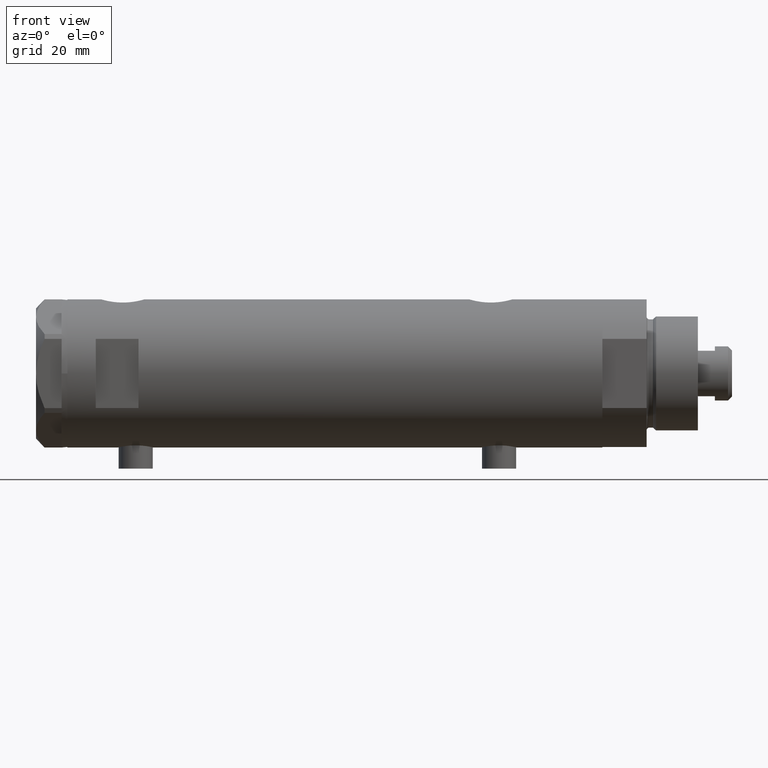
[diagram: clean part render]
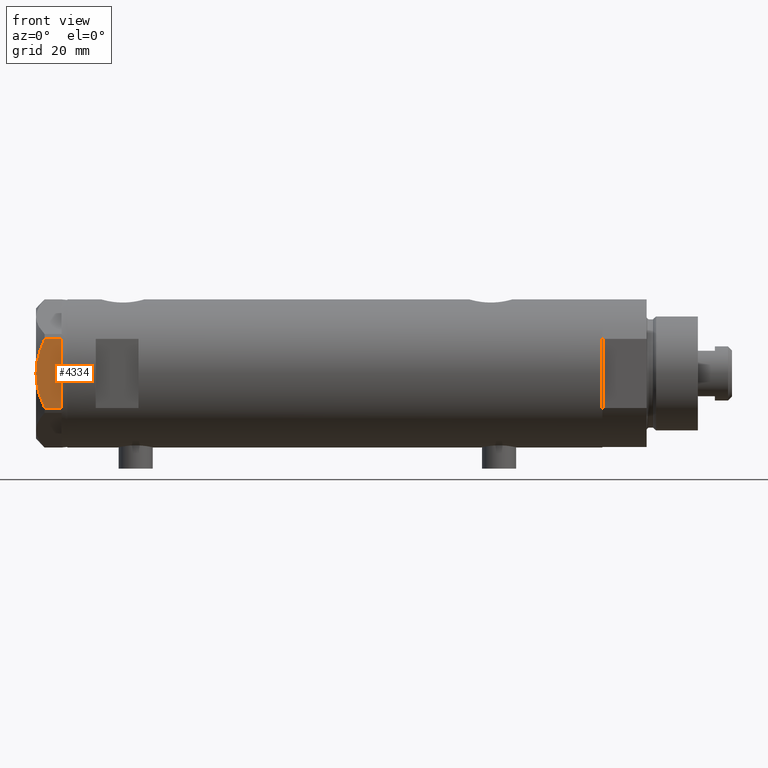
[diagram: same view with one face highlighted and labeled with its STEP entity id]
A machine part, front view. The second image highlights one B-rep face of the part: STEP entity #4334.
In plain terms, the highlighted planar face has unit normal (-0, 1, -0).
Its self-contained STEP definition (entity closure, byte-faithful):
#45 = EDGE_CURVE ( 'NONE', #1657, #672, #2189, .T. ) ;
#151 = CARTESIAN_POINT ( 'NONE',  ( -22.99999999999992184, -7.253003311474388148, 7.903276810347638737 ) ) ;
#190 = CARTESIAN_POINT ( 'NONE',  ( -22.99999999999999645, 13.27905619136132032, 0.000000000000000000 ) ) ;
#294 = ORIENTED_EDGE ( 'NONE', *, *, #3319, .T. ) ;
#357 = CARTESIAN_POINT ( 'NONE',  ( -22.99999999999990763, -12.15905619136147564, 5.983800287807627072 ) ) ;
#386 = CARTESIAN_POINT ( 'NONE',  ( -22.99999999999991118, -11.20155944044816287, 6.421102682632757741 ) ) ;
#447 = DIRECTION ( 'NONE',  ( 1.000000000000000000, 3.527173405730720141E-15, -0.000000000000000000 ) ) ;
#520 = CARTESIAN_POINT ( 'NONE',  ( -22.99999999999995026, -1.063773509315737442, 8.981438083606830602 ) ) ;
#574 = CARTESIAN_POINT ( 'NONE',  ( -22.99999999999999289, 12.15905619136133176, 5.983800287807616414 ) ) ;
#622 = EDGE_CURVE ( 'NONE', #4735, #3419, #2667, .T. ) ;
#672 = VERTEX_POINT ( 'NONE', #3672 ) ;
#679 = CARTESIAN_POINT ( 'NONE',  ( -22.99999999999998224, 8.246028007352361300, 7.571131808646907935 ) ) ;
#733 = CARTESIAN_POINT ( 'NONE',  ( -22.99999999999996803, 7.239756182922199024, 7.892186063422847120 ) ) ;
#743 = VECTOR ( 'NONE', #2736, 1000.000000000000000 ) ;
#761 = CARTESIAN_POINT ( 'NONE',  ( -22.99999999999997513, 8.748091966971378142, 7.396818978284571244 ) ) ;
#838 = CARTESIAN_POINT ( 'NONE',  ( -22.99999999999990763, -12.12435565298232021, 0.000000000000000000 ) ) ;
#937 = DIRECTION ( 'NONE',  ( 3.527173405730720141E-15, -1.000000000000000000, 0.000000000000000000 ) ) ;
#1003 = AXIS2_PLACEMENT_3D ( 'NONE', #1957, #447, #3438 ) ;
#1076 = CARTESIAN_POINT ( 'NONE',  ( -22.99999999999999289, 12.15905619136133176, 9.000000000000000000 ) ) ;
#1079 = EDGE_CURVE ( 'NONE', #1710, #1110, #1870, .T. ) ;
#1110 = VERTEX_POINT ( 'NONE', #357 ) ;
#1116 = CARTESIAN_POINT ( 'NONE',  ( -22.99999999999992895, -5.228918809624124364, 8.433337033849854336 ) ) ;
#1132 = CARTESIAN_POINT ( 'NONE',  ( -22.99999999999998579, 10.23890159976122050, 6.840812428290914404 ) ) ;
#1237 = CARTESIAN_POINT ( 'NONE',  ( -22.99999999999993250, -4.203926054641964782, 8.641681223122507305 ) ) ;
#1285 = CARTESIAN_POINT ( 'NONE',  ( -22.99999999999991829, -9.734726261263297431, 7.028924700095662281 ) ) ;
#1329 = ORIENTED_EDGE ( 'NONE', *, *, #2928, .T. ) ;
#1454 = CARTESIAN_POINT ( 'NONE',  ( -22.99999999999996803, 4.194757081058972936, 8.703000351525203016 ) ) ;
#1485 = DIRECTION ( 'NONE',  ( 0.000000000000000000, 0.000000000000000000, -1.000000000000000000 ) ) ;
#1598 = CARTESIAN_POINT ( 'NONE',  ( -22.99999999999999645, 13.27905619136132032, 0.000000000000000000 ) ) ;
#1657 = VERTEX_POINT ( 'NONE', #574 ) ;
#1710 = VERTEX_POINT ( 'NONE', #3215 ) ;
#1870 = B_SPLINE_CURVE_WITH_KNOTS ( 'NONE', 3,
 ( #2379, #3138, #520, #3507, #4100, #1237, #1116, #151, #2746, #1285, #3740, #386, #4252, #1883 ),
 .UNSPECIFIED., .F., .F.,
 ( 4, 2, 2, 2, 2, 2, 4 ),
 ( 0.04777139595992690307, 0.04934380568070229761, 0.05091621540147769215, 0.05406103484302848122, 0.05720585428457927030, 0.05877826400535466483, 0.06035067372613005937 ),
 .UNSPECIFIED. ) ;
#1883 = CARTESIAN_POINT ( 'NONE',  ( -22.99999999999990763, -12.15905619136147564, 5.983800287807627072 ) ) ;
#1900 = CARTESIAN_POINT ( 'NONE',  ( -22.99999999999999289, 12.15905619136133176, 5.983800287807616414 ) ) ;
#1938 = CARTESIAN_POINT ( 'NONE',  ( -22.99999999999990763, -12.15905619136147386, 0.000000000000000000 ) ) ;
#1957 = CARTESIAN_POINT ( 'NONE',  ( -22.99999999999999645, 13.27905619136132032, 9.000000000000000000 ) ) ;
#2141 = DIRECTION ( 'NONE',  ( 3.527173405730720141E-15, -1.000000000000000000, 0.000000000000000000 ) ) ;
#2189 = LINE ( 'NONE', #1076, #3554 ) ;
#2192 = FACE_OUTER_BOUND ( 'NONE', #4050, .T. ) ;
#2213 = EDGE_CURVE ( 'NONE', #1657, #1710, #3417, .T. ) ;
#2273 = CARTESIAN_POINT ( 'NONE',  ( -22.99999999999998934, 11.20825071633916359, 6.428173306378450746 ) ) ;
#2379 = CARTESIAN_POINT ( 'NONE',  ( -23.00000000000004619, -8.112498833180673323E-14, 9.000000000000000000 ) ) ;
#2667 = LINE ( 'NONE', #1598, #743 ) ;
#2736 = DIRECTION ( 'NONE',  ( 3.527173405730720141E-15, -1.000000000000000000, 0.000000000000000000 ) ) ;
#2746 = CARTESIAN_POINT ( 'NONE',  ( -22.99999999999991829, -8.252113629125268801, 7.581642062680223226 ) ) ;
#2783 = LINE ( 'NONE', #4659, #4524 ) ;
#2828 = ORIENTED_EDGE ( 'NONE', *, *, #1079, .F. ) ;
#2854 = ORIENTED_EDGE ( 'NONE', *, *, #45, .T. ) ;
#2895 = LINE ( 'NONE', #4803, #4858 ) ;
#2928 = EDGE_CURVE ( 'NONE', #672, #4362, #4616, .T. ) ;
#3022 = ORIENTED_EDGE ( 'NONE', *, *, #622, .T. ) ;
#3138 = CARTESIAN_POINT ( 'NONE',  ( -22.99999999999995737, -0.5295934231897764244, 9.000000000000092371 ) ) ;
#3215 = CARTESIAN_POINT ( 'NONE',  ( -23.00000000000004619, -8.112498833180673323E-14, 9.000000000000000000 ) ) ;
#3319 = EDGE_CURVE ( 'NONE', #3419, #1110, #2783, .T. ) ;
#3417 = B_SPLINE_CURVE_WITH_KNOTS ( 'NONE', 3,
 ( #1900, #2273, #1132, #761, #679, #733, #4118, #1454, #4390, #4070 ),
 .UNSPECIFIED., .F., .F.,
 ( 4, 2, 2, 2, 4 ),
 ( 0.03516523594057416324, 0.03831677594541234300, 0.03989254594783143981, 0.04146831595025052969, 0.04777139595992690307 ),
 .UNSPECIFIED. ) ;
#3419 = VERTEX_POINT ( 'NONE', #1938 ) ;
#3438 = DIRECTION ( 'NONE',  ( -3.527173405730720141E-15, 1.000000000000000000, 0.000000000000000000 ) ) ;
#3471 = ORIENTED_EDGE ( 'NONE', *, *, #2213, .F. ) ;
#3507 = CARTESIAN_POINT ( 'NONE',  ( -22.99999999999993960, -2.119709279061923191, 8.908535212173198659 ) ) ;
#3554 = VECTOR ( 'NONE', #1485, 1000.000000000000000 ) ;
#3645 = VECTOR ( 'NONE', #937, 1000.000000000000000 ) ;
#3672 = CARTESIAN_POINT ( 'NONE',  ( -22.99999999999999289, 12.15905619136133176, 0.000000000000000000 ) ) ;
#3675 = PLANE ( 'NONE',  #1003 ) ;
#3740 = CARTESIAN_POINT ( 'NONE',  ( -22.99999999999991118, -10.22738952213794761, 6.832470313674783746 ) ) ;
#3822 = ORIENTED_EDGE ( 'NONE', *, *, #4581, .T. ) ;
#3899 = DIRECTION ( 'NONE',  ( 0.000000000000000000, 0.000000000000000000, 1.000000000000000000 ) ) ;
#4050 = EDGE_LOOP ( 'NONE', ( #3471, #2854, #1329, #3822, #3022, #294, #2828 ) ) ;
#4070 = CARTESIAN_POINT ( 'NONE',  ( -23.00000000000004619, -8.112498833180673323E-14, 9.000000000000000000 ) ) ;
#4100 = CARTESIAN_POINT ( 'NONE',  ( -22.99999999999993960, -2.643615312305158671, 8.854304560636265364 ) ) ;
#4118 = CARTESIAN_POINT ( 'NONE',  ( -22.99999999999997158, 6.734330413511419700, 8.039389741252668031 ) ) ;
#4252 = CARTESIAN_POINT ( 'NONE',  ( -22.99999999999990763, -11.68282849742335827, 6.206372352695425754 ) ) ;
#4334 = ADVANCED_FACE ( 'NONE', ( #2192 ), #3675, .F. ) ;
#4362 = VERTEX_POINT ( 'NONE', #4497 ) ;
#4390 = CARTESIAN_POINT ( 'NONE',  ( -22.99999999999995381, 2.122900714018063795, 9.000000000000092371 ) ) ;
#4497 = CARTESIAN_POINT ( 'NONE',  ( -22.99999999999999289, 12.12435565298215856, 0.000000000000000000 ) ) ;
#4524 = VECTOR ( 'NONE', #3899, 1000.000000000000000 ) ;
#4581 = EDGE_CURVE ( 'NONE', #4362, #4735, #2895, .T. ) ;
#4616 = LINE ( 'NONE', #190, #3645 ) ;
#4659 = CARTESIAN_POINT ( 'NONE',  ( -22.99999999999990763, -12.15905619136147386, 9.000000000000000000 ) ) ;
#4735 = VERTEX_POINT ( 'NONE', #838 ) ;
#4803 = CARTESIAN_POINT ( 'NONE',  ( -22.99999999999999645, 13.27905619136132032, 0.000000000000000000 ) ) ;
#4858 = VECTOR ( 'NONE', #2141, 1000.000000000000000 ) ;